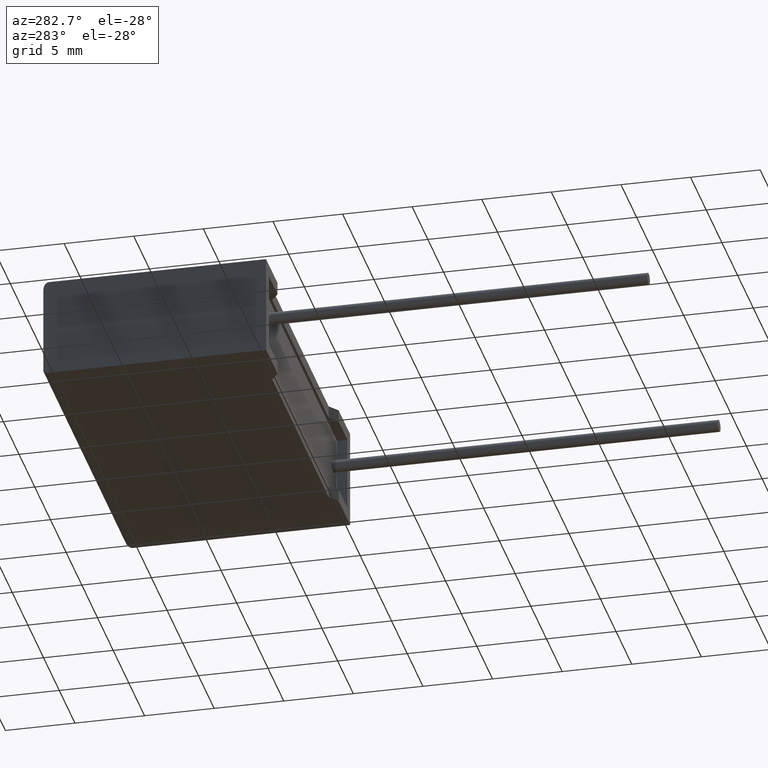
[diagram: clean part render]
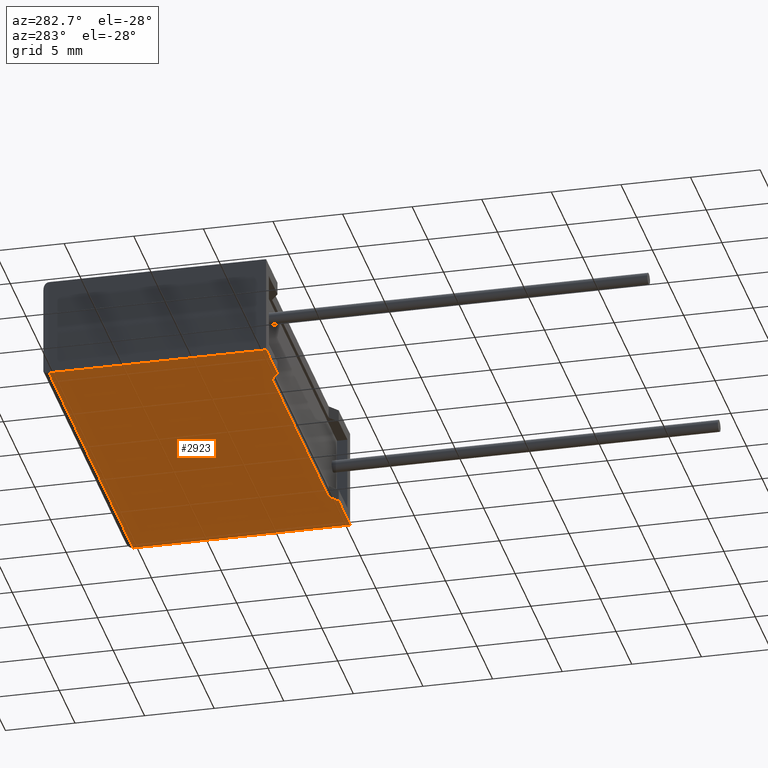
[diagram: same view with one face highlighted and labeled with its STEP entity id]
A machine part, auxiliary view. The second image highlights one B-rep face of the part: STEP entity #2923.
In plain terms, the highlighted planar face has unit normal (0, 0, -1).
Its self-contained STEP definition (entity closure, byte-faithful):
#36 = CARTESIAN_POINT ( 'NONE',  ( 0.0000000000000000000, 0.0000000000000000000, 0.0000000000000000000 ) ) ;
#44 = CARTESIAN_POINT ( 'NONE',  ( 0.0000000000000000000, 0.0000000000000000000, 0.0000000000000000000 ) ) ;
#75 = VECTOR ( 'NONE', #2847, 1000.000000000000000 ) ;
#79 = CARTESIAN_POINT ( 'NONE',  ( 3.650000000000001200, 2.234980408443920700E-016, 0.0000000000000000000 ) ) ;
#124 = ORIENTED_EDGE ( 'NONE', *, *, #1294, .T. ) ;
#155 = EDGE_CURVE ( 'NONE', #353, #1627, #1690, .T. ) ;
#316 = ORIENTED_EDGE ( 'NONE', *, *, #1806, .F. ) ;
#319 = VECTOR ( 'NONE', #2980, 1000.000000000000000 ) ;
#353 = VERTEX_POINT ( 'NONE', #2747 ) ;
#422 = LINE ( 'NONE', #1115, #1099 ) ;
#484 = ORIENTED_EDGE ( 'NONE', *, *, #2497, .T. ) ;
#492 = VECTOR ( 'NONE', #2690, 1000.000000000000000 ) ;
#592 = EDGE_LOOP ( 'NONE', ( #750, #124, #316, #1799, #1368, #484, #2343, #1503 ) ) ;
#738 = DIRECTION ( 'NONE',  ( -1.000000000000000000, -1.203898050721187500E-016, 0.0000000000000000000 ) ) ;
#750 = ORIENTED_EDGE ( 'NONE', *, *, #914, .F. ) ;
#826 = DIRECTION ( 'NONE',  ( -0.8015735119582766400, -0.5978962325745785800, -0.0000000000000000000 ) ) ;
#881 = DIRECTION ( 'NONE',  ( 1.000000000000000000, -0.0000000000000000000, -0.0000000000000000000 ) ) ;
#914 = EDGE_CURVE ( 'NONE', #1978, #353, #1765, .T. ) ;
#924 = CARTESIAN_POINT ( 'NONE',  ( 23.15000000000000200, 2.234980408443920700E-016, 0.0000000000000000000 ) ) ;
#1081 = CARTESIAN_POINT ( 'NONE',  ( 26.80000000000000100, 0.0000000000000000000, 0.0000000000000000000 ) ) ;
#1099 = VECTOR ( 'NONE', #881, 1000.000000000000000 ) ;
#1115 = CARTESIAN_POINT ( 'NONE',  ( 26.80000000000000100, 15.60000000000000000, 0.0000000000000000000 ) ) ;
#1127 = CARTESIAN_POINT ( 'NONE',  ( 26.80000000000000100, 15.60000000000000000, 0.0000000000000000000 ) ) ;
#1207 = VERTEX_POINT ( 'NONE', #1825 ) ;
#1294 = EDGE_CURVE ( 'NONE', #1978, #1319, #422, .T. ) ;
#1319 = VERTEX_POINT ( 'NONE', #1127 ) ;
#1368 = ORIENTED_EDGE ( 'NONE', *, *, #2375, .F. ) ;
#1381 = DIRECTION ( 'NONE',  ( 0.0000000000000000000, 0.0000000000000000000, -1.000000000000000000 ) ) ;
#1434 = CARTESIAN_POINT ( 'NONE',  ( 0.0000000000000000000, 15.60000000000000000, 0.0000000000000000000 ) ) ;
#1459 = PLANE ( 'NONE',  #1672 ) ;
#1503 = ORIENTED_EDGE ( 'NONE', *, *, #155, .F. ) ;
#1566 = VERTEX_POINT ( 'NONE', #924 ) ;
#1627 = VERTEX_POINT ( 'NONE', #79 ) ;
#1672 = AXIS2_PLACEMENT_3D ( 'NONE', #36, #1381, #2631 ) ;
#1690 = LINE ( 'NONE', #44, #2801 ) ;
#1726 = VERTEX_POINT ( 'NONE', #1081 ) ;
#1748 = CARTESIAN_POINT ( 'NONE',  ( 22.40576400000000100, 0.5551279999999997300, 0.0000000000000000000 ) ) ;
#1754 = CARTESIAN_POINT ( 'NONE',  ( 3.650000000000001200, 2.234980408443920700E-016, 0.0000000000000000000 ) ) ;
#1765 = LINE ( 'NONE', #2454, #492 ) ;
#1799 = ORIENTED_EDGE ( 'NONE', *, *, #1966, .F. ) ;
#1806 = EDGE_CURVE ( 'NONE', #1726, #1319, #2330, .T. ) ;
#1823 = CARTESIAN_POINT ( 'NONE',  ( 26.80000000000000100, 0.0000000000000000000, 0.0000000000000000000 ) ) ;
#1825 = CARTESIAN_POINT ( 'NONE',  ( 4.394236000000001100, 0.5551279999999997300, 0.0000000000000000000 ) ) ;
#1843 = VECTOR ( 'NONE', #2087, 1000.000000000000000 ) ;
#1917 = CARTESIAN_POINT ( 'NONE',  ( 13.40000000000000000, 0.5551280000000008400, 0.0000000000000000000 ) ) ;
#1948 = LINE ( 'NONE', #1754, #2658 ) ;
#1966 = EDGE_CURVE ( 'NONE', #1566, #1726, #2673, .T. ) ;
#1978 = VERTEX_POINT ( 'NONE', #1434 ) ;
#1999 = LINE ( 'NONE', #2321, #1843 ) ;
#2071 = VECTOR ( 'NONE', #738, 1000.000000000000000 ) ;
#2087 = DIRECTION ( 'NONE',  ( 0.8015735119582766400, -0.5978962325745785800, -0.0000000000000000000 ) ) ;
#2122 = VERTEX_POINT ( 'NONE', #1748 ) ;
#2247 = FACE_OUTER_BOUND ( 'NONE', #592, .T. ) ;
#2251 = LINE ( 'NONE', #1917, #2071 ) ;
#2321 = CARTESIAN_POINT ( 'NONE',  ( 23.15000000000000200, 2.234980408443920700E-016, 0.0000000000000000000 ) ) ;
#2330 = LINE ( 'NONE', #1823, #319 ) ;
#2343 = ORIENTED_EDGE ( 'NONE', *, *, #2849, .T. ) ;
#2366 = DIRECTION ( 'NONE',  ( 1.000000000000000000, 0.0000000000000000000, 0.0000000000000000000 ) ) ;
#2375 = EDGE_CURVE ( 'NONE', #2122, #1566, #1999, .T. ) ;
#2454 = CARTESIAN_POINT ( 'NONE',  ( 0.0000000000000000000, 0.0000000000000000000, 0.0000000000000000000 ) ) ;
#2497 = EDGE_CURVE ( 'NONE', #2122, #1207, #2251, .T. ) ;
#2631 = DIRECTION ( 'NONE',  ( -1.000000000000000000, 0.0000000000000000000, -0.0000000000000000000 ) ) ;
#2658 = VECTOR ( 'NONE', #826, 1000.000000000000000 ) ;
#2673 = LINE ( 'NONE', #2818, #75 ) ;
#2690 = DIRECTION ( 'NONE',  ( -0.0000000000000000000, -1.000000000000000000, -0.0000000000000000000 ) ) ;
#2747 = CARTESIAN_POINT ( 'NONE',  ( 0.0000000000000000000, 0.0000000000000000000, 0.0000000000000000000 ) ) ;
#2801 = VECTOR ( 'NONE', #2366, 1000.000000000000000 ) ;
#2818 = CARTESIAN_POINT ( 'NONE',  ( 0.0000000000000000000, 0.0000000000000000000, 0.0000000000000000000 ) ) ;
#2847 = DIRECTION ( 'NONE',  ( 1.000000000000000000, 0.0000000000000000000, 0.0000000000000000000 ) ) ;
#2849 = EDGE_CURVE ( 'NONE', #1207, #1627, #1948, .T. ) ;
#2923 = ADVANCED_FACE ( 'NONE', ( #2247 ), #1459, .T. ) ;
#2980 = DIRECTION ( 'NONE',  ( 0.0000000000000000000, 1.000000000000000000, 0.0000000000000000000 ) ) ;